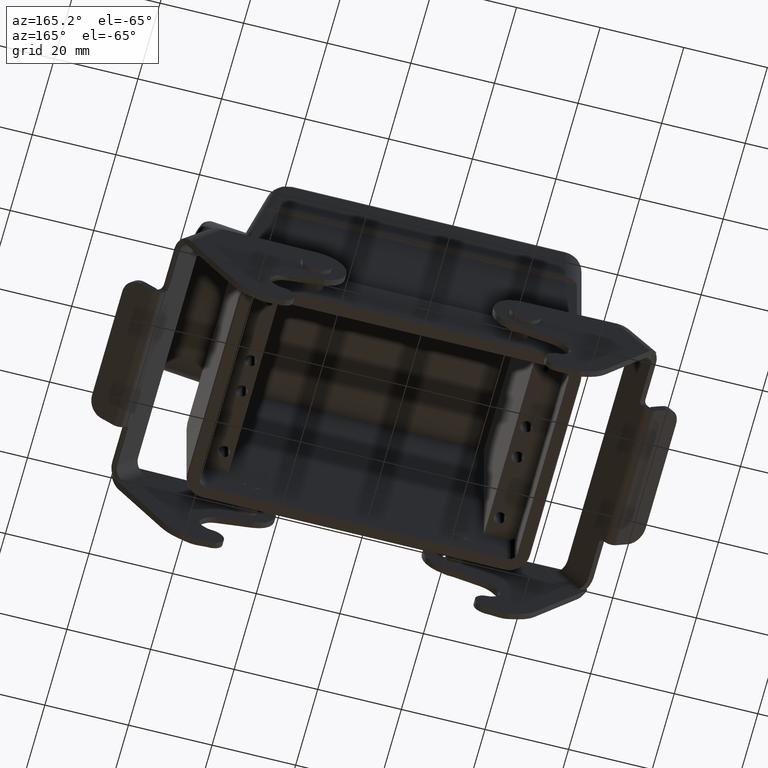
[diagram: clean part render]
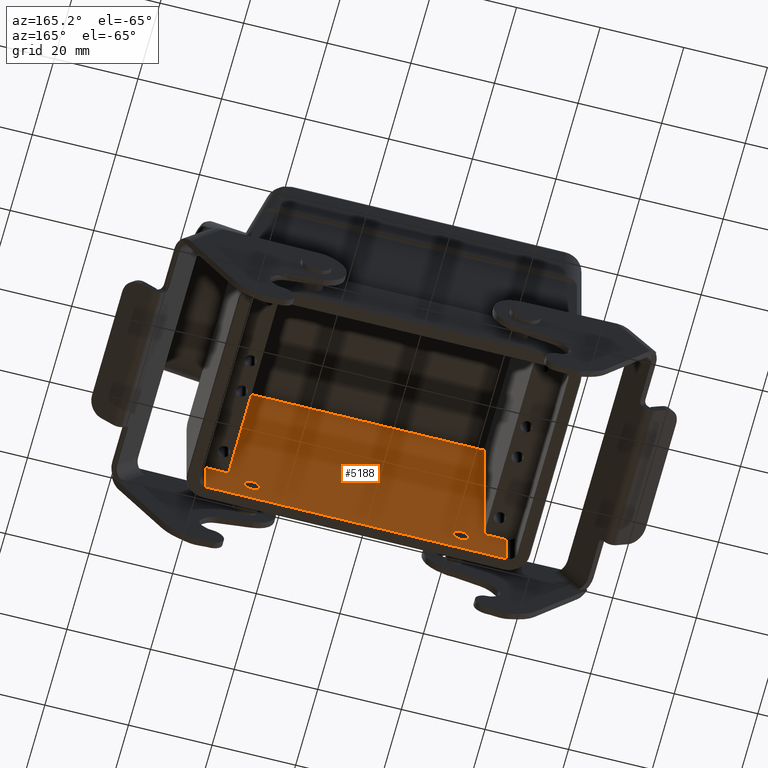
[diagram: same view with one face highlighted and labeled with its STEP entity id]
A machine part, auxiliary view. The second image highlights one B-rep face of the part: STEP entity #5188.
In plain terms, the highlighted planar face has unit normal (0, 1, 0).
Its self-contained STEP definition (entity closure, byte-faithful):
#1700=DIRECTION('',(0.E0,0.E0,-1.E0));
#1701=VECTOR('',#1700,4.6E1);
#1702=CARTESIAN_POINT('',(-3.05E1,-2.5E1,5.65E1));
#1703=LINE('',#1702,#1701);
#1704=DIRECTION('',(1.E0,0.E0,0.E0));
#1705=VECTOR('',#1704,6.110097030869E1);
#1706=CARTESIAN_POINT('',(-3.05E1,-2.5E1,5.65E1));
#1707=LINE('',#1706,#1705);
#1716=DIRECTION('',(1.406244478120E-5,0.E0,9.999999999011E-1));
#1717=VECTOR('',#1716,4.600000000455E1);
#1718=CARTESIAN_POINT('',(3.060032343623E1,-2.5E1,1.05E1));
#1719=LINE('',#1718,#1717);
#1720=DIRECTION('',(-1.E0,0.E0,0.E0));
#1721=VECTOR('',#1720,5.5E0);
#1722=CARTESIAN_POINT('',(-3.05E1,-2.5E1,1.05E1));
#1723=LINE('',#1722,#1721);
#1724=DIRECTION('',(1.E0,0.E0,0.E0));
#1725=VECTOR('',#1724,7.2E1);
#1726=CARTESIAN_POINT('',(-3.6E1,-2.5E1,1.142789566681E-13));
#1727=LINE('',#1726,#1725);
#1728=DIRECTION('',(-1.E0,0.E0,0.E0));
#1729=VECTOR('',#1728,5.399676563770E0);
#1730=CARTESIAN_POINT('',(3.6E1,-2.5E1,1.05E1));
#1731=LINE('',#1730,#1729);
#1732=CARTESIAN_POINT('',(2.5E1,-2.5E1,6.5E0));
#1733=DIRECTION('',(0.E0,1.E0,0.E0));
#1734=DIRECTION('',(-8.069411370542E-1,0.E0,-5.906318661651E-1));
#1735=AXIS2_PLACEMENT_3D('',#1732,#1733,#1734);
#1737=CARTESIAN_POINT('',(2.5E1,-2.5E1,6.5E0));
#1738=DIRECTION('',(0.E0,1.E0,0.E0));
#1739=DIRECTION('',(8.069411370542E-1,0.E0,5.906318661651E-1));
#1740=AXIS2_PLACEMENT_3D('',#1737,#1738,#1739);
#1742=CARTESIAN_POINT('',(-2.5E1,-2.5E1,6.5E0));
#1743=DIRECTION('',(0.E0,-1.E0,0.E0));
#1744=DIRECTION('',(8.069411370542E-1,0.E0,-5.906318661651E-1));
#1745=AXIS2_PLACEMENT_3D('',#1742,#1743,#1744);
#1747=CARTESIAN_POINT('',(-2.5E1,-2.5E1,6.5E0));
#1748=DIRECTION('',(0.E0,-1.E0,0.E0));
#1749=DIRECTION('',(-8.069411370542E-1,0.E0,5.906318661651E-1));
#1750=AXIS2_PLACEMENT_3D('',#1747,#1748,#1749);
#1838=DIRECTION('',(0.E0,0.E0,1.E0));
#1839=VECTOR('',#1838,1.05E1);
#1840=CARTESIAN_POINT('',(3.6E1,-2.5E1,1.142789566681E-13));
#1841=LINE('',#1840,#1839);
#2130=DIRECTION('',(0.E0,0.E0,-1.E0));
#2131=VECTOR('',#2130,1.05E1);
#2132=CARTESIAN_POINT('',(-3.6E1,-2.5E1,1.05E1));
#2133=LINE('',#2132,#2131);
#2612=CARTESIAN_POINT('',(-3.6E1,-2.5E1,3.357314426466E-13));
#2613=VERTEX_POINT('',#2612);
#2614=CARTESIAN_POINT('',(3.6E1,-2.5E1,1.142789566681E-13));
#2615=VERTEX_POINT('',#2614);
#2628=CARTESIAN_POINT('',(3.060032343623E1,-2.5E1,1.05E1));
#2630=VERTEX_POINT('',#2628);
#2632=CARTESIAN_POINT('',(3.6E1,-2.5E1,1.05E1));
#2633=VERTEX_POINT('',#2632);
#2656=CARTESIAN_POINT('',(-3.05E1,-2.5E1,1.05E1));
#2658=VERTEX_POINT('',#2656);
#2662=CARTESIAN_POINT('',(-3.6E1,-2.5E1,1.05E1));
#2663=VERTEX_POINT('',#2662);
#2712=CARTESIAN_POINT('',(3.060097030869E1,-2.5E1,5.65E1));
#2713=VERTEX_POINT('',#2712);
#2736=CARTESIAN_POINT('',(-3.05E1,-2.5E1,5.65E1));
#2737=VERTEX_POINT('',#2736);
#2857=CARTESIAN_POINT('',(2.358785301015E1,-2.5E1,5.466394234210E0));
#2858=CARTESIAN_POINT('',(2.641214698985E1,-2.5E1,7.533605765790E0));
#2859=VERTEX_POINT('',#2857);
#2860=VERTEX_POINT('',#2858);
#2889=CARTESIAN_POINT('',(-2.358785301015E1,-2.5E1,5.466394234210E0));
#2890=CARTESIAN_POINT('',(-2.641214698985E1,-2.5E1,7.533605765790E0));
#2891=VERTEX_POINT('',#2889);
#2892=VERTEX_POINT('',#2890);
#5157=CARTESIAN_POINT('',(0.E0,-2.5E1,2.825E1));
#5158=DIRECTION('',(0.E0,1.E0,0.E0));
#5159=DIRECTION('',(1.E0,0.E0,0.E0));
#5160=AXIS2_PLACEMENT_3D('',#5157,#5158,#5159);
#5161=PLANE('',#5160);
#5163=ORIENTED_EDGE('',*,*,#5162,.T.);
#5164=ORIENTED_EDGE('',*,*,#5148,.F.);
#5165=ORIENTED_EDGE('',*,*,#5137,.T.);
#5166=ORIENTED_EDGE('',*,*,#5098,.T.);
#5168=ORIENTED_EDGE('',*,*,#5167,.T.);
#5169=ORIENTED_EDGE('',*,*,#3307,.T.);
#5171=ORIENTED_EDGE('',*,*,#5170,.T.);
#5173=ORIENTED_EDGE('',*,*,#5172,.T.);
#5174=EDGE_LOOP('',(#5163,#5164,#5165,#5166,#5168,#5169,#5171,#5173));
#5175=FACE_OUTER_BOUND('',#5174,.F.);
#5177=ORIENTED_EDGE('',*,*,#5176,.T.);
#5179=ORIENTED_EDGE('',*,*,#5178,.T.);
#5180=EDGE_LOOP('',(#5177,#5179));
#5181=FACE_BOUND('',#5180,.F.);
#5183=ORIENTED_EDGE('',*,*,#5182,.F.);
#5185=ORIENTED_EDGE('',*,*,#5184,.F.);
#5186=EDGE_LOOP('',(#5183,#5185));
#5187=FACE_BOUND('',#5186,.F.);
#5188=ADVANCED_FACE('',(#5175,#5181,#5187),#5161,.T.);
#1736=CIRCLE('',#1735,1.750000000002E0);
#1741=CIRCLE('',#1740,1.750000000002E0);
#1746=CIRCLE('',#1745,1.750000000002E0);
#1751=CIRCLE('',#1750,1.750000000002E0);
#3307=EDGE_CURVE('',#2613,#2615,#1727,.T.);
#5098=EDGE_CURVE('',#2658,#2663,#1723,.T.);
#5137=EDGE_CURVE('',#2737,#2658,#1703,.T.);
#5148=EDGE_CURVE('',#2737,#2713,#1707,.T.);
#5162=EDGE_CURVE('',#2630,#2713,#1719,.T.);
#5167=EDGE_CURVE('',#2663,#2613,#2133,.T.);
#5170=EDGE_CURVE('',#2615,#2633,#1841,.T.);
#5172=EDGE_CURVE('',#2633,#2630,#1731,.T.);
#5176=EDGE_CURVE('',#2859,#2860,#1736,.T.);
#5178=EDGE_CURVE('',#2860,#2859,#1741,.T.);
#5182=EDGE_CURVE('',#2891,#2892,#1746,.T.);
#5184=EDGE_CURVE('',#2892,#2891,#1751,.T.);